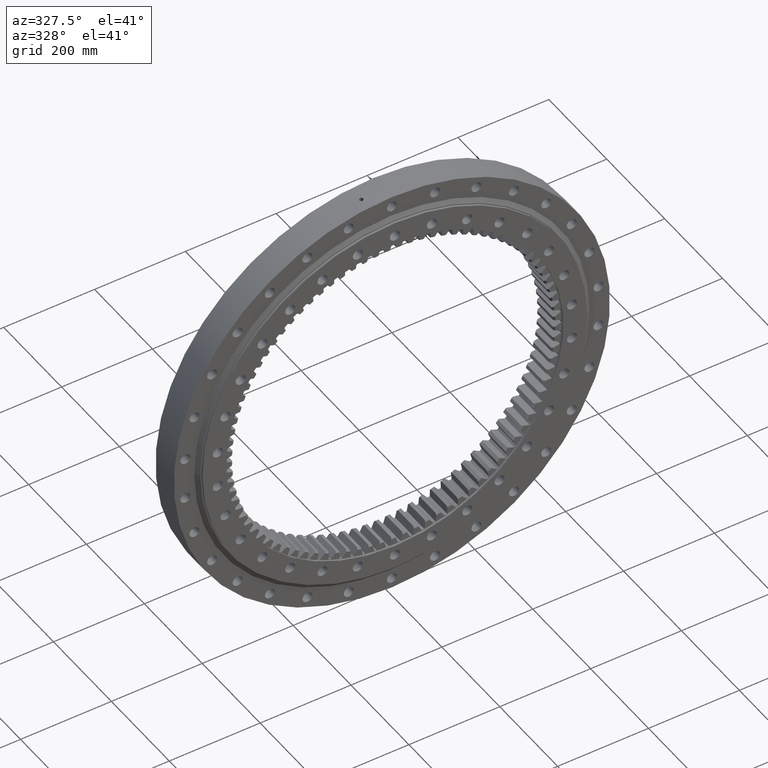
[diagram: clean part render]
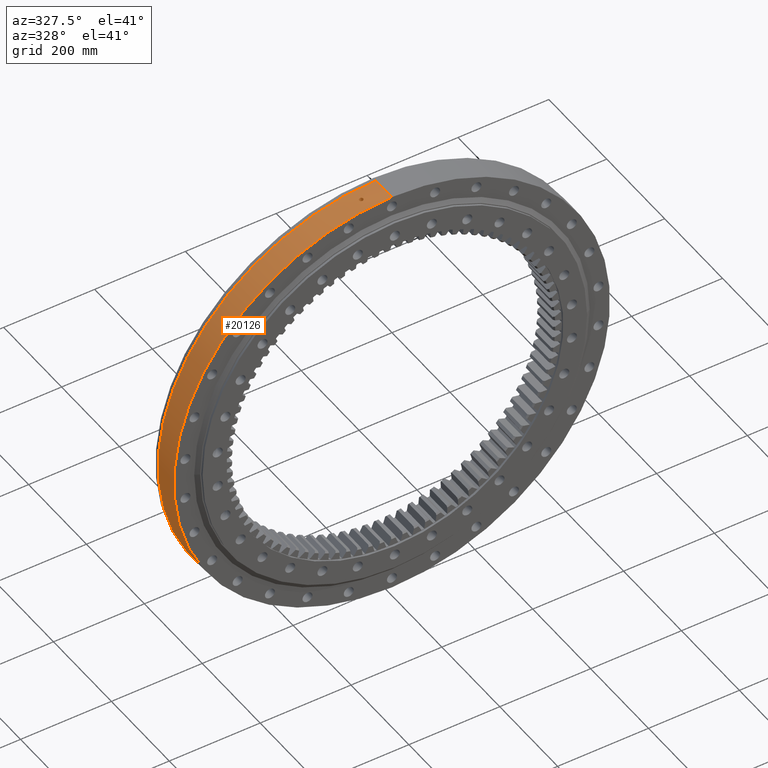
[diagram: same view with one face highlighted and labeled with its STEP entity id]
A machine part, auxiliary view. The second image highlights one B-rep face of the part: STEP entity #20126.
In plain terms, the highlighted cylindrical surface (partial cylindrical patch) has radius 480 mm, axis along (0, -1, -0).
Its self-contained STEP definition (entity closure, byte-faithful):
#69 = ORIENTED_EDGE ( 'NONE', *, *, #21200, .T. ) ;
#306 = AXIS2_PLACEMENT_3D ( 'NONE', #22513, #10633, #24503 ) ;
#347 = CARTESIAN_POINT ( 'NONE',  ( -54.50422693158000700, 1.164868335675971300, 476.8954733633586300 ) ) ;
#431 = CARTESIAN_POINT ( 'NONE',  ( -50.46714876570501900, 4.499895681576165700, 477.3396621301262700 ) ) ;
#519 = CARTESIAN_POINT ( 'NONE',  ( -45.92457067296565000, 1.449119632500524000, 477.7980185873728900 ) ) ;
#911 = CARTESIAN_POINT ( 'NONE',  ( -390.9396130107880400, -0.5854540645740499100, -278.5071314829788200 ) ) ;
#999 = CARTESIAN_POINT ( 'NONE',  ( -388.6762239963603600, -4.470445786933080300, -281.6573727290795000 ) ) ;
#1004 = CARTESIAN_POINT ( 'NONE',  ( -46.28651353758343800, -2.252556029768342200, 477.7631063066396000 ) ) ;
#1047 = CARTESIAN_POINT ( 'NONE',  ( -386.0195567133675400, 2.254171555035913200, -285.2874489137295200 ) ) ;
#1084 = CARTESIAN_POINT ( 'NONE',  ( -385.9378386913564300, -1.997038219430007100, -285.3979630421527500 ) ) ;
#1091 = CARTESIAN_POINT ( 'NONE',  ( -51.32868846485578000, -4.357378810568004500, 477.2477851130366300 ) ) ;
#1136 = CARTESIAN_POINT ( 'NONE',  ( -389.0131424819806500, 4.355941555043462400, -281.1918531166915600 ) ) ;
#1178 = CARTESIAN_POINT ( 'NONE',  ( -54.64680595190937100, -0.2972601088634334600, 476.8791530348693200 ) ) ;
#1221 = CARTESIAN_POINT ( 'NONE',  ( -390.9561253580801000, 0.2936964174254423400, -278.4839457580941400 ) ) ;
#1489 = LINE ( 'NONE', #7637, #11437 ) ;
#2020 = DIRECTION ( 'NONE',  ( 1.173697223544192200E-016, -1.000000000000000000, -3.494217355385783800E-017 ) ) ;
#2337 = CARTESIAN_POINT ( 'NONE',  ( -54.19377072635542400, 1.995682324606341800, 476.9308628882594100 ) ) ;
#2427 = CARTESIAN_POINT ( 'NONE',  ( -49.58684009175743100, 4.470844770991290900, 477.4319098809999100 ) ) ;
#2517 = CARTESIAN_POINT ( 'NONE',  ( -45.72540574511218400, 0.5919618365306755800, 477.8171099664912200 ) ) ;
#2541 = DIRECTION ( 'NONE',  ( 1.173697223544192200E-016, -1.000000000000000000, -3.494217355385783800E-017 ) ) ;
#2924 = CARTESIAN_POINT ( 'NONE',  ( -390.8227001806017100, -1.449886345495851500, -278.6711854147923800 ) ) ;
#3005 = CARTESIAN_POINT ( 'NONE',  ( -388.1559918680927700, -4.500248141122973800, -282.3738904458182300 ) ) ;
#3010 = CARTESIAN_POINT ( 'NONE',  ( -46.79948125848779500, -2.972154368279020400, 477.7131477404740800 ) ) ;
#3057 = CARTESIAN_POINT ( 'NONE',  ( -386.3264788053585900, 2.974981823168955800, -284.8717165497303100 ) ) ;
#3096 = CARTESIAN_POINT ( 'NONE',  ( -385.7527367013723800, -1.173646348569922000, -285.6480868437969300 ) ) ;
#3100 = CARTESIAN_POINT ( 'NONE',  ( -52.15484774780881600, -4.045622942340227900, 477.1581984425353100 ) ) ;
#3141 = CARTESIAN_POINT ( 'NONE',  ( -389.4960750047781600, 4.045564435084177300, -280.5225156192699400 ) ) ;
#3545 = VERTEX_POINT ( 'NONE', #14902 ) ;
#3678 = CIRCLE ( 'NONE', #8262, 480.0000000000000000 ) ;
#3821 = VERTEX_POINT ( 'NONE', #13753 ) ;
#4275 = CARTESIAN_POINT ( 'NONE',  ( -54.64680595190935700, 0.2973272140415820200, 476.8791530348693200 ) ) ;
#4365 = CARTESIAN_POINT ( 'NONE',  ( -53.73182848198347000, 2.743369639967361300, 476.9831415059355800 ) ) ;
#4441 = CARTESIAN_POINT ( 'NONE',  ( -48.73364632982705300, 4.270948294085453500, 477.5197440199628400 ) ) ;
#4479 = ORIENTED_EDGE ( 'NONE', *, *, #24979, .F. ) ;
#4536 = CARTESIAN_POINT ( 'NONE',  ( -45.69610889359488200, -7.333118393681371500E-009, 477.8199092042782500 ) ) ;
#4853 = CARTESIAN_POINT ( 'NONE',  ( -390.9561253580801000, -0.2936301318779663300, -278.4839457580941400 ) ) ;
#4941 = CARTESIAN_POINT ( 'NONE',  ( -390.6117302837221800, -2.252556029768354700, -278.9668497294811700 ) ) ;
#5023 = CARTESIAN_POINT ( 'NONE',  ( -387.6443615753174200, -4.357378810568013300, -283.0758407100225900 ) ) ;
#5025 = CARTESIAN_POINT ( 'NONE',  ( -47.44218345721135000, -3.577391969612179000, 477.6497661504943200 ) ) ;
#5068 = CARTESIAN_POINT ( 'NONE',  ( -386.7070954722307200, 3.576389606019395800, -284.3548537102754500 ) ) ;
#5103 = CARTESIAN_POINT ( 'NONE',  ( -385.6660580874479400, -0.2972601088634440100, -285.7650987074687200 ) ) ;
#5109 = CARTESIAN_POINT ( 'NONE',  ( -52.89787619713045100, -3.581691690547008600, 477.0763822061546200 ) ) ;
#5151 = CARTESIAN_POINT ( 'NONE',  ( -389.9346365942969900, 3.578754795863892100, -279.9125553560433000 ) ) ;
#5181 = ORIENTED_EDGE ( 'NONE', *, *, #17479, .F. ) ;
#5730 = DIRECTION ( 'NONE',  ( 1.173697223544192200E-016, -1.000000000000000000, -3.494217355385783800E-017 ) ) ;
#6344 = CARTESIAN_POINT ( 'NONE',  ( -53.13018721799165400, 3.390113224750300500, 477.0505490221326600 ) ) ;
#6431 = CARTESIAN_POINT ( 'NONE',  ( -47.92934887891058100, 3.904600354785692700, 477.6011274881166200 ) ) ;
#6814 = CIRCLE ( 'NONE', #306, 480.0000000000000000 ) ;
#6832 = CARTESIAN_POINT ( 'NONE',  ( -390.9561253580801600, -7.333132489853083200E-009, -278.4839457580941400 ) ) ;
#6916 = CARTESIAN_POINT ( 'NONE',  ( -390.3119810358341500, -2.972154368279018100, -279.3861135240230200 ) ) ;
#6960 = CARTESIAN_POINT ( 'NONE',  ( -385.6660580874477700, 0.2973272140415678700, -285.7650987074686100 ) ) ;
#6998 = CARTESIAN_POINT ( 'NONE',  ( -387.1536976013462700, -4.045622942340243000, -283.7465223013815000 ) ) ;
#7006 = CARTESIAN_POINT ( 'NONE',  ( -48.18620138976672300, -4.042875762597558900, 477.5752966803037800 ) ) ;
#7053 = CARTESIAN_POINT ( 'NONE',  ( -387.1532885707989100, 4.045121110632944500, -283.7470783540123900 ) ) ;
#7094 = CARTESIAN_POINT ( 'NONE',  ( -53.54143610274203300, -2.976678462919696100, 477.0045679302521600 ) ) ;
#7139 = CARTESIAN_POINT ( 'NONE',  ( -390.3118567831562000, 2.972766249273957100, -279.3862892056670300 ) ) ;
#7566 = CARTESIAN_POINT ( 'NONE',  ( -8.282705781506809400E-014, -22.16364734299515100, -480.0000000000000000 ) ) ;
#7637 = CARTESIAN_POINT ( 'NONE',  ( 2.924669372601236100E-014, -22.16364734299518700, 480.0000000000000000 ) ) ;
#7934 = CYLINDRICAL_SURFACE ( 'NONE', #13162, 480.0000000000000000 ) ;
#8257 = VECTOR ( 'NONE', #9538, 1000.000000000000000 ) ;
#8262 = AXIS2_PLACEMENT_3D ( 'NONE', #13943, #2020, #15919 ) ;
#8344 = CARTESIAN_POINT ( 'NONE',  ( -52.41594442617351000, 3.905344578566670100, 477.1295728490043800 ) ) ;
#8426 = CARTESIAN_POINT ( 'NONE',  ( -47.21787374048805200, 3.392749870917782100, 477.6719758799494600 ) ) ;
#8557 = FACE_OUTER_BOUND ( 'NONE', #21062, .T. ) ;
#8911 = CARTESIAN_POINT ( 'NONE',  ( -389.9357398694176000, -3.577391969612198100, -279.9110191601959100 ) ) ;
#8916 = CARTESIAN_POINT ( 'NONE',  ( -45.69610889359488200, -0.2936301318779536700, 477.8199092042783600 ) ) ;
#8993 = CARTESIAN_POINT ( 'NONE',  ( -386.7113284375375900, -3.581691690547019700, -284.3490956960382100 ) ) ;
#8996 = CARTESIAN_POINT ( 'NONE',  ( -49.01217327743834300, -4.355728442268981500, 477.4912455567524000 ) ) ;
#9033 = CARTESIAN_POINT ( 'NONE',  ( -387.6405153453923200, 4.355842567544318200, -283.0811107006828700 ) ) ;
#9074 = CARTESIAN_POINT ( 'NONE',  ( -54.05339522749108700, -2.259570114722942300, 476.9468078351529200 ) ) ;
#9118 = CARTESIAN_POINT ( 'NONE',  ( -390.6099233119883300, 2.257525879738786900, -278.9693789046750100 ) ) ;
#9538 = DIRECTION ( 'NONE',  ( 1.173697223544192200E-016, -1.000000000000000000, -3.494217355385783800E-017 ) ) ;
#10056 = VERTEX_POINT ( 'NONE', #17831 ) ;
#10120 = B_SPLINE_CURVE_WITH_KNOTS ( 'NONE', 3,
 ( #20805, #8916, #22802, #10917, #24795, #12909, #1004, #14913, #3010, #16901, #5025, #18905, #7006, #20881, #8996, #22888, #10998, #24879, #12990, #1091, #14991, #3100, #16976, #5109, #18988, #7094, #20963, #9074, #22969, #11083, #24959, #13072, #1178, #15075 ),
 .UNSPECIFIED., .F., .F.,
 ( 4, 2, 2, 2, 2, 2, 2, 2, 2, 2, 2, 2, 2, 2, 2, 2, 4 ),
 ( 0.01406913473212503600, 0.01494825715143688900, 0.01582737957074874200, 0.01670650199006059500, 0.01758562440937244700, 0.01846474682868429900, 0.01934386924799615100, 0.02022299166730800300, 0.02110211408661985500, 0.02198123650593170700, 0.02286035892524356000, 0.02373948134455541200, 0.02461860376386726400, 0.02549772618317911600, 0.02637684860249097200, 0.02725597102180282400, 0.02813509344111467600 ),
 .UNSPECIFIED. ) ;
#10338 = CARTESIAN_POINT ( 'NONE',  ( -51.61713313996303000, 4.269501079124840000, 477.2166645162694700 ) ) ;
#10436 = CARTESIAN_POINT ( 'NONE',  ( -46.61399939791925100, 2.744956082407383300, 477.7312650605864500 ) ) ;
#10459 = DIRECTION ( 'NONE',  ( 5.551115123125782700E-017, -3.614007241618347900E-017, 1.000000000000000000 ) ) ;
#10471 = ORIENTED_EDGE ( 'NONE', *, *, #18031, .F. ) ;
#10549 = EDGE_CURVE ( 'NONE', #19379, #25096, #18821, .T. ) ;
#10609 = CARTESIAN_POINT ( 'NONE',  ( 2.664535259100375700E-014, 27.50000000000004600, 480.0000000000000000 ) ) ;
#10633 = DIRECTION ( 'NONE',  ( -1.173697223544192200E-016, 1.000000000000000000, 8.822830751849692900E-017 ) ) ;
#10914 = CARTESIAN_POINT ( 'NONE',  ( -389.4992384501484300, -4.042875762597571300, -280.5181228555648500 ) ) ;
#10917 = CARTESIAN_POINT ( 'NONE',  ( -45.83894881221489500, -1.165415293260586300, 477.8062306832058500 ) ) ;
#10956 = CARTESIAN_POINT ( 'NONE',  ( -385.7514814166821700, 1.164868335675973700, -285.6497818180614000 ) ) ;
#10991 = CARTESIAN_POINT ( 'NONE',  ( -386.3273554974459800, -2.976678462919731600, -284.8705277852037600 ) ) ;
#10998 = CARTESIAN_POINT ( 'NONE',  ( -49.87482441808835200, -4.499748685515131200, 477.4019165418953300 ) ) ;
#11043 = CARTESIAN_POINT ( 'NONE',  ( -388.1546992557163100, 4.499895681576157700, -282.3756639527338700 ) ) ;
#11083 = CARTESIAN_POINT ( 'NONE',  ( -54.41639959977011600, -1.455749924503577200, 476.9055127558956400 ) ) ;
#11125 = CARTESIAN_POINT ( 'NONE',  ( -390.8229366380502900, 1.449119632500499800, -278.6708541543703700 ) ) ;
#11437 = VECTOR ( 'NONE', #5730, 1000.000000000000000 ) ;
#11509 = ORIENTED_EDGE ( 'NONE', *, *, #10549, .T. ) ;
#11530 = CARTESIAN_POINT ( 'NONE',  ( -54.64680595190935000, -7.333120905629759700E-009, 476.8791530348693200 ) ) ;
#12132 = B_SPLINE_CURVE_WITH_KNOTS ( 'NONE', 3,
 ( #20762, #6960, #22844, #10956, #24839, #12951, #1047, #14953, #3057, #16937, #5068, #18945, #7053, #20923, #9033, #22929, #11043, #24921, #13035, #1136, #15036, #3141, #17026, #5151, #19029, #7139, #21006, #9118, #23011, #11125, #25011, #13115, #1221, #15116 ),
 .UNSPECIFIED., .F., .F.,
 ( 4, 2, 2, 2, 2, 2, 2, 2, 2, 2, 2, 2, 2, 2, 2, 2, 4 ),
 ( 2.116481540343811400E-017, 0.0008793209207578320200, 0.001758641841515643000, 0.002637962762273453800, 0.003517283683031264700, 0.004396604603789075300, 0.005275925524546885800, 0.006155246445304697300, 0.007034567366062507800, 0.007913888286820318400, 0.008793209207578129800, 0.009672530128335941200, 0.01055185104909375100, 0.01143117196985156200, 0.01231049289060937400, 0.01318981381136718300, 0.01406913473212499500 ),
 .UNSPECIFIED. ) ;
#12240 = CARTESIAN_POINT ( 'NONE',  ( -54.61781651324547200, 0.5896850171848799800, 476.8824775426296000 ) ) ;
#12327 = CARTESIAN_POINT ( 'NONE',  ( -50.75753012596870000, 4.471354070360657600, 477.3088701336744700 ) ) ;
#12424 = CARTESIAN_POINT ( 'NONE',  ( -46.14942762204452700, 1.994554482004870400, 477.7763525831658700 ) ) ;
#12904 = CARTESIAN_POINT ( 'NONE',  ( -389.0134620981006000, -4.355728442268993000, -281.1914099313245900 ) ) ;
#12909 = CARTESIAN_POINT ( 'NONE',  ( -46.14805814875467100, -1.991447610567115900, 477.7764846516006400 ) ) ;
#12934 = EDGE_CURVE ( 'NONE', #3545, #14307, #21375, .T. ) ;
#12951 = CARTESIAN_POINT ( 'NONE',  ( -385.9373577468865600, 1.995682324606336400, -285.3986136200247800 ) ) ;
#12984 = CARTESIAN_POINT ( 'NONE',  ( -386.0213542253904400, -2.259570114722939200, -285.2850173453861100 ) ) ;
#12990 = CARTESIAN_POINT ( 'NONE',  ( -50.75695370652578500, -4.471227366295477300, 477.3089296307529100 ) ) ;
#13035 = CARTESIAN_POINT ( 'NONE',  ( -388.6747424883886900, 4.470844770991279300, -281.6594181533603800 ) ) ;
#13072 = CARTESIAN_POINT ( 'NONE',  ( -54.61782615208306900, -0.5914365197642529300, 476.8824765668588300 ) ) ;
#13115 = CARTESIAN_POINT ( 'NONE',  ( -390.9390527212866600, 0.5919618365306575900, -278.5079179568654100 ) ) ;
#13162 = AXIS2_PLACEMENT_3D ( 'NONE', #14458, #2541, #10459 ) ;
#13753 = CARTESIAN_POINT ( 'NONE',  ( 2.987301995575027600E-014, -27.49999999999993200, 480.0000000000000000 ) ) ;
#13772 = ORIENTED_EDGE ( 'NONE', *, *, #12934, .T. ) ;
#13800 = CARTESIAN_POINT ( 'NONE',  ( -8.542839895007671600E-014, 27.50000000000012800, -480.0000000000000000 ) ) ;
#13850 = FACE_BOUND ( 'NONE', #22499, .T. ) ;
#13943 = CARTESIAN_POINT ( 'NONE',  ( 3.227667364746518000E-015, -27.49999999999991500, -9.609097727310874400E-016 ) ) ;
#14084 = CARTESIAN_POINT ( 'NONE',  ( -385.6660580874478200, -7.333147215841168800E-009, -285.7650987074686100 ) ) ;
#14260 = CARTESIAN_POINT ( 'NONE',  ( -54.41824825395807600, 1.450672711516632700, 476.9053019393380700 ) ) ;
#14307 = VERTEX_POINT ( 'NONE', #14084 ) ;
#14341 = CARTESIAN_POINT ( 'NONE',  ( -49.88334837651483200, 4.500103738460465400, 477.4010239848570300 ) ) ;
#14429 = CARTESIAN_POINT ( 'NONE',  ( -45.83989936497516000, 1.168563050024321800, 477.8061394891175800 ) ) ;
#14458 = CARTESIAN_POINT ( 'NONE',  ( 2.601341135008604100E-015, -22.16364734299516900, -7.744460120454373600E-016 ) ) ;
#14824 = CARTESIAN_POINT ( 'NONE',  ( -390.8728594520353600, -1.165415293260597500, -278.6008094957575200 ) ) ;
#14902 = CARTESIAN_POINT ( 'NONE',  ( -390.9561253580801600, -7.333132489853083200E-009, -278.4839457580941400 ) ) ;
#14911 = CARTESIAN_POINT ( 'NONE',  ( -388.5047753316142700, -4.499748685515140100, -281.8938232263024000 ) ) ;
#14913 = CARTESIAN_POINT ( 'NONE',  ( -46.61410845451194300, -2.745438163182702500, 477.7312549710613300 ) ) ;
#14953 = CARTESIAN_POINT ( 'NONE',  ( -386.2136034800548100, 2.743369639967358200, -285.0246992101554600 ) ) ;
#14987 = CARTESIAN_POINT ( 'NONE',  ( -385.8040894515626700, -1.455749924503603400, -285.5787408138357900 ) ) ;
#14991 = CARTESIAN_POINT ( 'NONE',  ( -51.61220872961552400, -4.271335216213938000, 477.2171983432426100 ) ) ;
#15036 = CARTESIAN_POINT ( 'NONE',  ( -389.1774059650151100, 4.270948294085428600, -280.9644477506597600 ) ) ;
#15075 = CARTESIAN_POINT ( 'NONE',  ( -54.64680595190935000, -7.333120905629759700E-009, 476.8791530348693200 ) ) ;
#15116 = CARTESIAN_POINT ( 'NONE',  ( -390.9561253580801600, -7.333132489853083200E-009, -278.4839457580941400 ) ) ;
#15919 = DIRECTION ( 'NONE',  ( 5.551115123125782700E-017, -3.614007241618347900E-017, 1.000000000000000000 ) ) ;
#16235 = CARTESIAN_POINT ( 'NONE',  ( -54.05639978345905000, 2.254171555035914000, 476.9464669282491500 ) ) ;
#16318 = CARTESIAN_POINT ( 'NONE',  ( -49.01271689528471900, 4.355941555043473900, 477.4911903537566800 ) ) ;
#16332 = VERTEX_POINT ( 'NONE', #10609 ) ;
#16410 = CARTESIAN_POINT ( 'NONE',  ( -45.69610889359489600, 0.2936964174254551600, 477.8199092042783600 ) ) ;
#16811 = CARTESIAN_POINT ( 'NONE',  ( -390.6925439647335500, -1.991447610567109300, -278.8536330179451900 ) ) ;
#16896 = CARTESIAN_POINT ( 'NONE',  ( -387.9831816601267700, -4.471227366295487100, -282.6112761439403000 ) ) ;
#16901 = CARTESIAN_POINT ( 'NONE',  ( -47.21207350420157000, -3.387315568996422900, 477.6725479715256000 ) ) ;
#16937 = CARTESIAN_POINT ( 'NONE',  ( -386.5728007334835200, 3.390113224750300500, -284.5373663496723100 ) ) ;
#16973 = CARTESIAN_POINT ( 'NONE',  ( -385.6834262504940500, -0.5914365197642631500, -285.7416632306171200 ) ) ;
#16976 = CARTESIAN_POINT ( 'NONE',  ( -52.41188898759914800, -3.907536243736661400, 477.1300175610746200 ) ) ;
#17026 = CARTESIAN_POINT ( 'NONE',  ( -389.6500348413426900, 3.904600354785678500, -280.3085974600438700 ) ) ;
#17479 = EDGE_CURVE ( 'NONE', #19379, #16332, #6814, .T. ) ;
#17831 = CARTESIAN_POINT ( 'NONE',  ( -45.69610889359488200, -7.333118393681371500E-009, 477.8199092042782500 ) ) ;
#17931 = ORIENTED_EDGE ( 'NONE', *, *, #19022, .T. ) ;
#18031 = EDGE_CURVE ( 'NONE', #16332, #3821, #1489, .T. ) ;
#18151 = CARTESIAN_POINT ( 'NONE',  ( -54.64680595190935000, -7.333120905629759700E-009, 476.8791530348693200 ) ) ;
#18155 = B_SPLINE_CURVE_WITH_KNOTS ( 'NONE', 3,
 ( #18151, #4275, #12240, #347, #14260, #2337, #16235, #4365, #18243, #6344, #20221, #8344, #22227, #10338, #24227, #12327, #431, #14341, #2427, #16318, #4441, #18337, #6431, #20307, #8426, #22309, #10436, #24297, #12424, #519, #14429, #2517, #16410, #4536 ),
 .UNSPECIFIED., .F., .F.,
 ( 4, 2, 2, 2, 2, 2, 2, 2, 2, 2, 2, 2, 2, 2, 2, 2, 4 ),
 ( 3.031267659915260200E-018, 0.0008793209207578176000, 0.001758641841515632200, 0.002637962762273446800, 0.003517283683031261300, 0.004396604603789075300, 0.005275925524546890200, 0.006155246445304704200, 0.007034567366062519100, 0.007913888286820334000, 0.008793209207578148900, 0.009672530128335963700, 0.01055185104909377900, 0.01143117196985159400, 0.01231049289060940700, 0.01318981381136722200, 0.01406913473212503600 ),
 .UNSPECIFIED. ) ;
#18243 = CARTESIAN_POINT ( 'NONE',  ( -53.54290394906474400, 2.974981823168954900, 477.0044030748964600 ) ) ;
#18337 = CARTESIAN_POINT ( 'NONE',  ( -48.19158735741341800, 4.045564435084205700, 477.5747534381022200 ) ) ;
#18423 = ORIENTED_EDGE ( 'NONE', *, *, #25266, .T. ) ;
#18811 = CARTESIAN_POINT ( 'NONE',  ( -390.4203487595027600, -2.745438163182716300, -279.2346295819027700 ) ) ;
#18821 = LINE ( 'NONE', #7566, #8257 ) ;
#18899 = CARTESIAN_POINT ( 'NONE',  ( -387.4761125232761300, -4.271335216213949500, -283.3060830768951100 ) ) ;
#18905 = CARTESIAN_POINT ( 'NONE',  ( -47.92914907319104900, -3.904564935424526900, 477.6011479717458300 ) ) ;
#18945 = CARTESIAN_POINT ( 'NONE',  ( -386.9983587709677400, 3.905344578566666100, -283.9583258609235900 ) ) ;
#18983 = CARTESIAN_POINT ( 'NONE',  ( -385.6660580874478200, -7.333147215841168800E-009, -285.7650987074686100 ) ) ;
#18988 = CARTESIAN_POINT ( 'NONE',  ( -53.12828804574969900, -3.391801529915665600, 477.0507606278376300 ) ) ;
#19022 = EDGE_CURVE ( 'NONE', #19322, #10056, #18155, .T. ) ;
#19029 = CARTESIAN_POINT ( 'NONE',  ( -390.0671289176986000, 3.392749870917755900, -279.7278661119253800 ) ) ;
#19322 = VERTEX_POINT ( 'NONE', #11530 ) ;
#19379 = VERTEX_POINT ( 'NONE', #13800 ) ;
#20126 = ADVANCED_FACE ( 'NONE', ( #13850, #23774, #8557 ), #7934, .T. ) ;
#20221 = CARTESIAN_POINT ( 'NONE',  ( -52.90497926638871500, 3.576389606019398500, 477.0755953577841000 ) ) ;
#20236 = CARTESIAN_POINT ( 'NONE',  ( -8.542839895007671600E-014, -27.49999999999989700, -480.0000000000000000 ) ) ;
#20307 = CARTESIAN_POINT ( 'NONE',  ( -47.44406547940071300, 3.578754795863908100, 477.6495787841363400 ) ) ;
#20762 = CARTESIAN_POINT ( 'NONE',  ( -385.6660580874478200, -7.333147215841168800E-009, -285.7650987074686100 ) ) ;
#20801 = CARTESIAN_POINT ( 'NONE',  ( -390.0705244816800200, -3.387315568996419800, -279.7231290057413800 ) ) ;
#20805 = CARTESIAN_POINT ( 'NONE',  ( -45.69610889359488200, -7.333118393681371500E-009, 477.8199092042782500 ) ) ;
#20878 = CARTESIAN_POINT ( 'NONE',  ( -387.0007716222049800, -3.907536243736674700, -283.9550361041298200 ) ) ;
#20881 = CARTESIAN_POINT ( 'NONE',  ( -48.72749415698509500, -4.268830055452706800, 477.5203716249562300 ) ) ;
#20923 = CARTESIAN_POINT ( 'NONE',  ( -387.4731880103823300, 4.269501079124838200, -283.3100808278681500 ) ) ;
#20963 = CARTESIAN_POINT ( 'NONE',  ( -53.72659906790172400, -2.750359227238029300, 476.9837309514430200 ) ) ;
#21006 = CARTESIAN_POINT ( 'NONE',  ( -390.4204120255841400, 2.744956082407374000, -279.2345401808857400 ) ) ;
#21062 = EDGE_LOOP ( 'NONE', ( #5181, #11509, #4479, #10471 ) ) ;
#21200 = EDGE_CURVE ( 'NONE', #10056, #19322, #10120, .T. ) ;
#21375 = B_SPLINE_CURVE_WITH_KNOTS ( 'NONE', 3,
 ( #6832, #4853, #911, #14824, #2924, #16811, #4941, #18811, #6916, #20801, #8911, #22796, #10914, #24788, #12904, #999, #14911, #3005, #16896, #5023, #18899, #6998, #20878, #8993, #22882, #10991, #24876, #12984, #1084, #14987, #3096, #16973, #5103, #18983 ),
 .UNSPECIFIED., .F., .F.,
 ( 4, 2, 2, 2, 2, 2, 2, 2, 2, 2, 2, 2, 2, 2, 2, 2, 4 ),
 ( 0.01406913473212499500, 0.01494825715143684500, 0.01582737957074869400, 0.01670650199006054600, 0.01758562440937239500, 0.01846474682868424300, 0.01934386924799609600, 0.02022299166730794400, 0.02110211408661979300, 0.02198123650593164500, 0.02286035892524349400, 0.02373948134455534200, 0.02461860376386719500, 0.02549772618317904300, 0.02637684860249089200, 0.02725597102180274400, 0.02813509344111459300 ),
 .UNSPECIFIED. ) ;
#22227 = CARTESIAN_POINT ( 'NONE',  ( -52.15553381878667200, 4.045121110632944500, 477.1581222380057700 ) ) ;
#22309 = CARTESIAN_POINT ( 'NONE',  ( -46.79969552959337900, 2.972766249273981000, 477.7131279753206200 ) ) ;
#22499 = EDGE_LOOP ( 'NONE', ( #17931, #69 ) ) ;
#22513 = CARTESIAN_POINT ( 'NONE',  ( -3.227667364746538500E-015, 27.50000000000008500, 9.609097727310935600E-016 ) ) ;
#22796 = CARTESIAN_POINT ( 'NONE',  ( -389.6501524835457000, -3.904564935424546000, -280.3084346650295500 ) ) ;
#22802 = CARTESIAN_POINT ( 'NONE',  ( -45.72444449399620900, -0.5854540645740373700, 477.8172019544895200 ) ) ;
#22844 = CARTESIAN_POINT ( 'NONE',  ( -385.6834319149550700, 0.5896850171848847500, -285.7416553710242500 ) ) ;
#22882 = CARTESIAN_POINT ( 'NONE',  ( -386.5739335755204700, -3.391801529915698500, -284.5358274211169500 ) ) ;
#22888 = CARTESIAN_POINT ( 'NONE',  ( -49.58432794838272200, -4.470445786933069600, 477.4321701923988700 ) ) ;
#22929 = CARTESIAN_POINT ( 'NONE',  ( -387.9828419244240100, 4.471354070360644300, -282.6117455892820100 ) ) ;
#22969 = CARTESIAN_POINT ( 'NONE',  ( -54.19296683715614900, -1.997038219429981600, 476.9309541094521000 ) ) ;
#23011 = CARTESIAN_POINT ( 'NONE',  ( -390.6917448534688300, 1.994554482004847100, -278.8547529823865700 ) ) ;
#23774 = FACE_BOUND ( 'NONE', #24161, .T. ) ;
#24161 = EDGE_LOOP ( 'NONE', ( #18423, #13772 ) ) ;
#24227 = CARTESIAN_POINT ( 'NONE',  ( -51.33517552560782300, 4.355842567544337700, 477.2470891755429500 ) ) ;
#24297 = CARTESIAN_POINT ( 'NONE',  ( -46.28960735341882300, 2.257525879738791800, 477.7628060108110600 ) ) ;
#24503 = DIRECTION ( 'NONE',  ( -5.551115123125783900E-017, 8.673617379884035500E-017, -1.000000000000000000 ) ) ;
#24788 = CARTESIAN_POINT ( 'NONE',  ( -389.1810255733041700, -4.268830055452719200, -280.9594336151868700 ) ) ;
#24795 = CARTESIAN_POINT ( 'NONE',  ( -45.92497578163055000, -1.449886345495857900, 477.7979794394266300 ) ) ;
#24839 = CARTESIAN_POINT ( 'NONE',  ( -385.8029825519745900, 1.450672711516629600, -285.5802363870467400 ) ) ;
#24876 = CARTESIAN_POINT ( 'NONE',  ( -386.2167286618793000, -2.750359227238030200, -285.0204651274675600 ) ) ;
#24879 = CARTESIAN_POINT ( 'NONE',  ( -50.46496655747392200, -4.500248141122959600, 477.3398948118236300 ) ) ;
#24921 = CARTESIAN_POINT ( 'NONE',  ( -388.4997403753316100, 4.500103738460447600, -281.9007589123212900 ) ) ;
#24959 = CARTESIAN_POINT ( 'NONE',  ( -54.50213139846319200, -1.173646348569914200, 476.8957129846570500 ) ) ;
#24979 = EDGE_CURVE ( 'NONE', #3821, #25096, #3678, .T. ) ;
#25011 = CARTESIAN_POINT ( 'NONE',  ( -390.8723051992579900, 1.168563050024303800, -278.6015871015513300 ) ) ;
#25096 = VERTEX_POINT ( 'NONE', #20236 ) ;
#25266 = EDGE_CURVE ( 'NONE', #14307, #3545, #12132, .T. ) ;